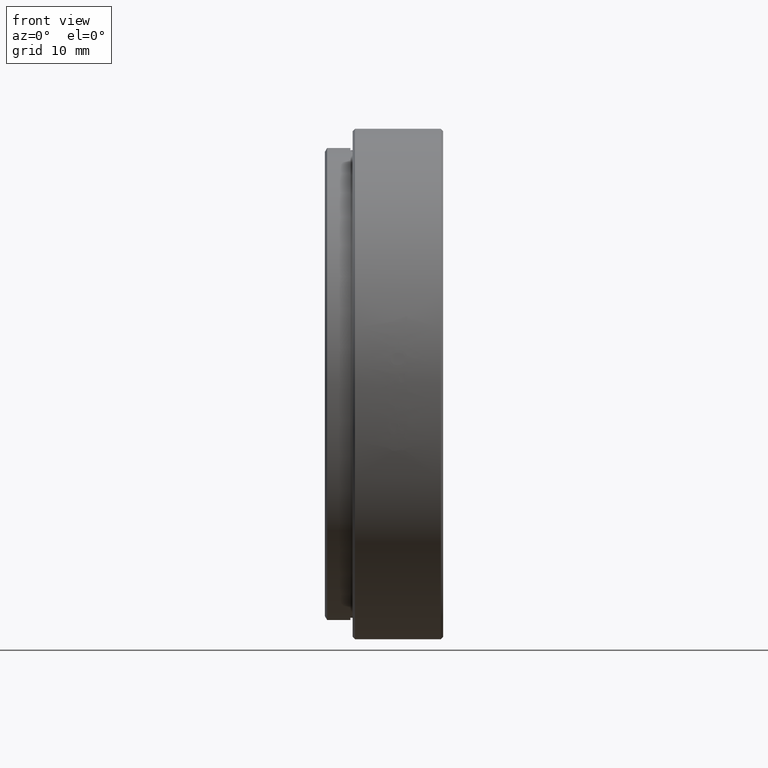
[diagram: clean part render]
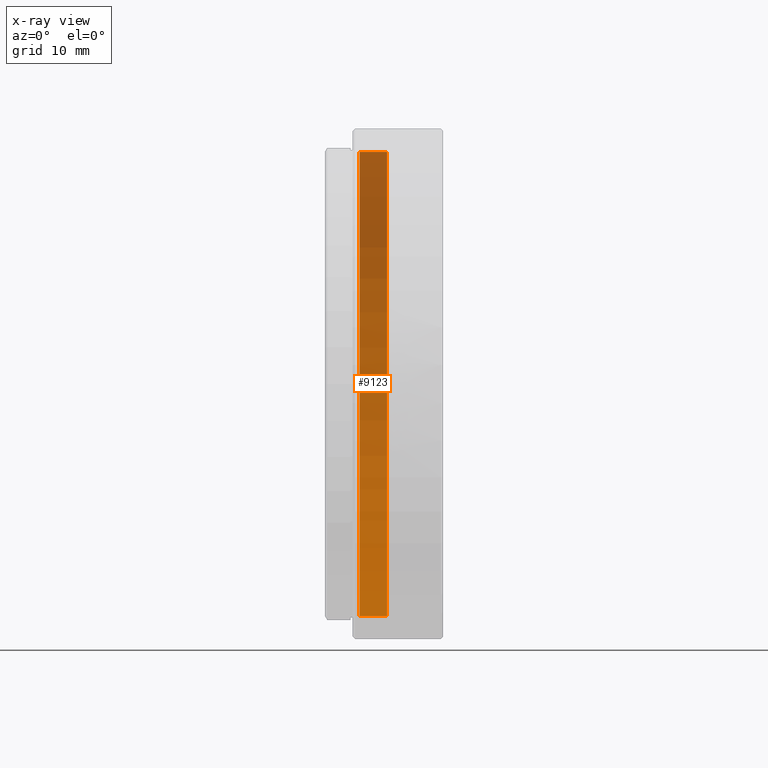
[diagram: x-ray — body ghosted, one internal face saturated and labeled with its STEP entity id]
A machine part, front view, then the same camera in x-ray: the body is ghosted and one INTERNAL B-rep face — a face not visible from any outside direction — is saturated and labeled: STEP entity #9123.
In plain terms, the highlighted cylindrical surface (partial cylindrical patch) has radius 25.4 mm, axis along (1, 0, 0).
Its self-contained STEP definition (entity closure, byte-faithful):
#305 = DIRECTION ( 'NONE',  ( 1.000000000000000000, 0.0000000000000000000, 0.0000000000000000000 ) ) ;
#405 = DIRECTION ( 'NONE',  ( 1.000000000000000000, 0.0000000000000000000, 0.0000000000000000000 ) ) ;
#626 = FACE_OUTER_BOUND ( 'NONE', #6185, .T. ) ;
#693 = EDGE_CURVE ( 'NONE', #1012, #7993, #2339, .T. ) ;
#912 = CIRCLE ( 'NONE', #3238, 25.39999999999999900 ) ;
#1012 = VERTEX_POINT ( 'NONE', #4439 ) ;
#1161 = DIRECTION ( 'NONE',  ( 1.000000000000000000, 0.0000000000000000000, 0.0000000000000000000 ) ) ;
#1284 = EDGE_CURVE ( 'NONE', #1360, #5249, #7364, .T. ) ;
#1360 = VERTEX_POINT ( 'NONE', #4014 ) ;
#1905 = VECTOR ( 'NONE', #305, 1000.000000000000000 ) ;
#1930 = ORIENTED_EDGE ( 'NONE', *, *, #693, .T. ) ;
#2339 = LINE ( 'NONE', #2520, #1905 ) ;
#2520 = CARTESIAN_POINT ( 'NONE',  ( 15.04281901686016500, 3.110602869834276900E-015, 25.39999999999999900 ) ) ;
#2858 = ORIENTED_EDGE ( 'NONE', *, *, #4579, .F. ) ;
#3238 = AXIS2_PLACEMENT_3D ( 'NONE', #4812, #405, #5544 ) ;
#3614 = DIRECTION ( 'NONE',  ( 1.000000000000000000, 0.0000000000000000000, 0.0000000000000000000 ) ) ;
#3721 = VECTOR ( 'NONE', #9046, 1000.000000000000000 ) ;
#3722 = ORIENTED_EDGE ( 'NONE', *, *, #5919, .T. ) ;
#3800 = CIRCLE ( 'NONE', #4773, 25.39999999999999900 ) ;
#4014 = CARTESIAN_POINT ( 'NONE',  ( -2.667000000000002500, 0.0000000000000000000, -25.39999999999999900 ) ) ;
#4439 = CARTESIAN_POINT ( 'NONE',  ( -2.667000000000002500, 3.110602869834276900E-015, 25.39999999999999900 ) ) ;
#4579 = EDGE_CURVE ( 'NONE', #5249, #7993, #3800, .T. ) ;
#4652 = CARTESIAN_POINT ( 'NONE',  ( 15.04281901686016500, 0.0000000000000000000, -25.39999999999999900 ) ) ;
#4680 = CARTESIAN_POINT ( 'NONE',  ( 0.3329999999999843600, 0.0000000000000000000, -25.40000000000013000 ) ) ;
#4741 = CARTESIAN_POINT ( 'NONE',  ( 15.04281901686016500, 0.0000000000000000000, 0.0000000000000000000 ) ) ;
#4773 = AXIS2_PLACEMENT_3D ( 'NONE', #7994, #3614, #8742 ) ;
#4812 = CARTESIAN_POINT ( 'NONE',  ( -2.667000000000002500, 0.0000000000000000000, 0.0000000000000000000 ) ) ;
#5249 = VERTEX_POINT ( 'NONE', #4680 ) ;
#5544 = DIRECTION ( 'NONE',  ( 0.0000000000000000000, 0.0000000000000000000, -1.000000000000000000 ) ) ;
#5547 = DIRECTION ( 'NONE',  ( 0.0000000000000000000, 0.0000000000000000000, -1.000000000000000000 ) ) ;
#5919 = EDGE_CURVE ( 'NONE', #1360, #1012, #912, .T. ) ;
#5973 = CARTESIAN_POINT ( 'NONE',  ( 0.3329999999999843600, 3.110602869834293000E-015, 25.40000000000013000 ) ) ;
#6185 = EDGE_LOOP ( 'NONE', ( #3722, #1930, #2858, #6332 ) ) ;
#6263 = CYLINDRICAL_SURFACE ( 'NONE', #6594, 25.39999999999999900 ) ;
#6332 = ORIENTED_EDGE ( 'NONE', *, *, #1284, .F. ) ;
#6594 = AXIS2_PLACEMENT_3D ( 'NONE', #4741, #1161, #5547 ) ;
#7364 = LINE ( 'NONE', #4652, #3721 ) ;
#7993 = VERTEX_POINT ( 'NONE', #5973 ) ;
#7994 = CARTESIAN_POINT ( 'NONE',  ( 0.3329999999999965200, 0.0000000000000000000, 0.0000000000000000000 ) ) ;
#8742 = DIRECTION ( 'NONE',  ( 0.0000000000000000000, 0.0000000000000000000, -1.000000000000000000 ) ) ;
#9046 = DIRECTION ( 'NONE',  ( 1.000000000000000000, 0.0000000000000000000, 0.0000000000000000000 ) ) ;
#9123 = ADVANCED_FACE ( 'NONE', ( #626 ), #6263, .T. ) ;